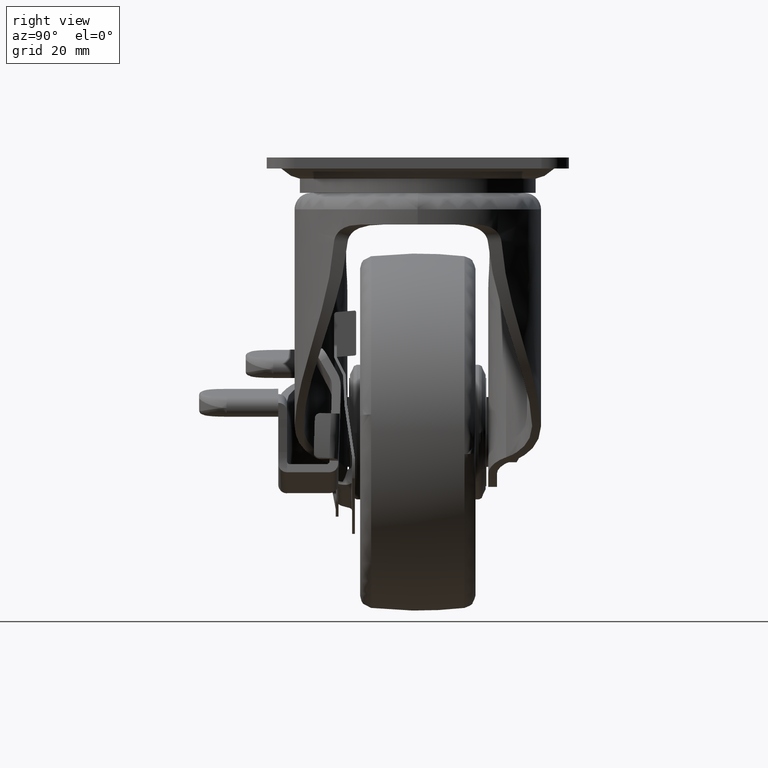
[diagram: clean part render]
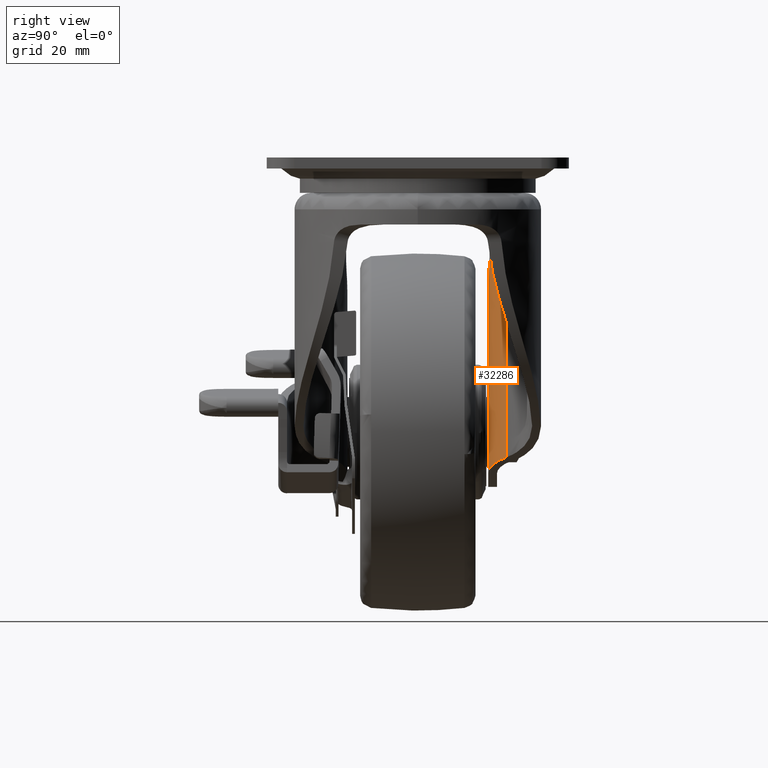
[diagram: same view with one face highlighted and labeled with its STEP entity id]
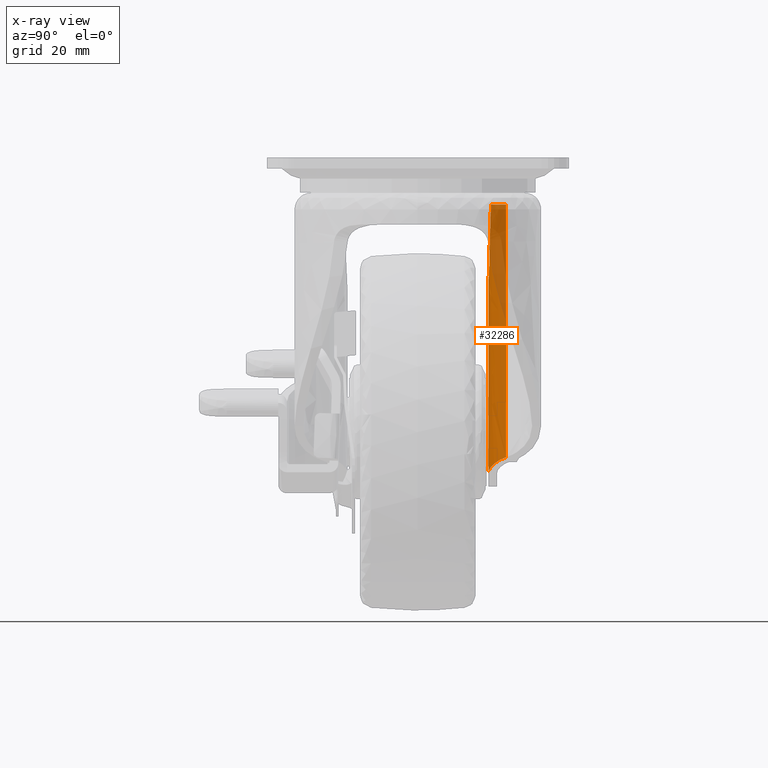
[diagram: x-ray of the same camera — body ghosted, the highlighted face saturated]
A machine part, right view. The second image highlights one B-rep face of the part: STEP entity #32286.
The next image is the same camera in x-ray: the body ghosted, the highlighted face saturated — about 32% of this face is hidden behind the body in this view.
In plain terms, the highlighted face is a freeform B-spline surface patch.
Its self-contained STEP definition (entity closure, byte-faithful):
#30979=CARTESIAN_POINT('',(-30.971173409171350,26.639348241174300,-17.143462153131100));
#30980=VERTEX_POINT('',#30979);
#31155=CARTESIAN_POINT('',(-24.551106778186650,32.171004480450897,-17.198692286226951));
#31156=VERTEX_POINT('',#31155);
#31169=CARTESIAN_POINT('',(-24.551106778186650,32.171004480450897,-17.198692286226951));
#31170=CARTESIAN_POINT('',(-26.821111910185206,28.330591171230029,-17.179164033208107));
#31171=CARTESIAN_POINT('',(-30.971173409171350,26.639348241174321,-17.143462153131232));
#31179=(BOUNDED_CURVE()B_SPLINE_CURVE(2,(#31169,#31170,#31171),.UNSPECIFIED.,.F.,.U.)CURVE()GEOMETRIC_REPRESENTATION_ITEM()QUASI_UNIFORM_CURVE()RATIONAL_B_SPLINE_CURVE((1.0,0.947548087643073,1.0))REPRESENTATION_ITEM(''));
#31180=EDGE_CURVE('',#31156,#30980,#31179,.T.);
#32003=CARTESIAN_POINT('',(-30.556049369187651,26.109934094623402,-34.380707880840554));
#32004=VERTEX_POINT('',#32003);
#32005=CARTESIAN_POINT('',(-30.971173409171289,26.639348241174300,-17.143462153131100));
#32006=CARTESIAN_POINT('',(-30.920320557739402,26.525135809695101,-20.015882535986400));
#32007=CARTESIAN_POINT('',(-30.858088342253708,26.426504407636351,-22.888715320616772));
#32008=CARTESIAN_POINT('',(-30.717953176934891,26.252122809537219,-28.634533617746861));
#32009=CARTESIAN_POINT('',(-30.639968681134430,26.176460764392811,-31.507567129741300));
#32010=CARTESIAN_POINT('',(-30.556049369187551,26.109934094623451,-34.380707880840497));
#32011=B_SPLINE_CURVE_WITH_KNOTS('',3,(#32005,#32006,#32007,#32008,#32009,#32010),.UNSPECIFIED.,.F.,.U.,(4,2,4),(0.0,0.500000000000000,1.0),.UNSPECIFIED.);
#32012=EDGE_CURVE('',#30980,#32004,#32011,.T.);
#32199=CARTESIAN_POINT('',(-12.872656363851791,32.673992637349997,-116.143241623702100));
#32200=CARTESIAN_POINT('',(-24.650034243257920,32.673992637349997,-13.888307063013070));
#32201=CARTESIAN_POINT('',(-16.776211810868112,25.251694795586719,-116.592839951354890));
#32202=CARTESIAN_POINT('',(-28.553589690274240,25.251694795586719,-14.337905390665801));
#32203=CARTESIAN_POINT('',(-25.109130929931094,25.666078180460676,-117.552597421499100));
#32204=CARTESIAN_POINT('',(-36.886508809337215,25.666078180460683,-15.297662860810046));
#32212=(BOUNDED_SURFACE()B_SPLINE_SURFACE(1,2,((#32199,#32201,#32203),(#32200,#32202,#32204)),.UNSPECIFIED.,.F.,.F.,.U.)B_SPLINE_SURFACE_WITH_KNOTS((2,2),(3,3),(0.0,102.930939331792400),(0.0,15.372673930811610),.UNSPECIFIED.)GEOMETRIC_REPRESENTATION_ITEM()RATIONAL_B_SPLINE_SURFACE(((1.0,0.843565671387457,0.999651936499553),(1.0,0.843565671387457,0.999651936499553)))REPRESENTATION_ITEM('')SURFACE());
#32213=CARTESIAN_POINT('',(-13.958340382854940,32.171004480450897,-109.168453778326590));
#32214=VERTEX_POINT('',#32213);
#32215=CARTESIAN_POINT('',(-24.551106778186650,32.171004480450897,-17.198692286226951));
#32216=CARTESIAN_POINT('',(-13.958340382854940,32.171004480450897,-109.168453778326590));
#32217=QUASI_UNIFORM_CURVE('',1,(#32215,#32216),.UNSPECIFIED.,.F.,.U.);
#32218=EDGE_CURVE('',#31156,#32214,#32217,.T.);
#32219=ORIENTED_EDGE('',*,*,#32218,.F.);
#32220=ORIENTED_EDGE('',*,*,#31180,.T.);
#32221=ORIENTED_EDGE('',*,*,#32012,.T.);
#32222=CARTESIAN_POINT('',(-31.237337067700651,25.745815892078902,-44.778439230526402));
#32223=VERTEX_POINT('',#32222);
#32224=CARTESIAN_POINT('',(-31.237337067700651,25.745815892078902,-44.778439230526402));
#32225=CARTESIAN_POINT('',(-30.978908773722861,25.788623989268871,-43.934019730008259));
#32226=CARTESIAN_POINT('',(-30.771909170149218,25.839556409856701,-43.082251767322468));
#32227=CARTESIAN_POINT('',(-30.457270743496050,25.937722614007392,-41.363544853443479));
#32228=CARTESIAN_POINT('',(-30.349645451878470,25.984993828519539,-40.496605740616140));
#32229=CARTESIAN_POINT('',(-30.263507646834700,26.042271943714049,-39.184156322181543));
#32230=CARTESIAN_POINT('',(-30.247378774990359,26.059131562532212,-38.744663233488353));
#32231=CARTESIAN_POINT('',(-30.242471230641080,26.080061038502429,-38.082296095040789));
#32232=CARTESIAN_POINT('',(-30.244064102876870,26.086297472831468,-37.861415432882808));
#32233=CARTESIAN_POINT('',(-30.253634623318860,26.097139845837859,-37.421292536898591));
#32234=CARTESIAN_POINT('',(-30.261609345665661,26.101754693660990,-37.201776120214817));
#32235=CARTESIAN_POINT('',(-30.317245325498590,26.120638870601550,-36.106890203031000));
#32236=CARTESIAN_POINT('',(-30.412034311403900,26.122079258796489,-35.239585776597110));
#32237=CARTESIAN_POINT('',(-30.556049369187701,26.109934094623419,-34.380707880840554));
#32238=B_SPLINE_CURVE_WITH_KNOTS('',3,(#32224,#32225,#32226,#32227,#32228,#32229,#32230,#32231,#32232,#32233,#32234,#32235,#32236,#32237),.UNSPECIFIED.,.F.,.U.,(4,2,2,2,2,2,4),(0.0,0.250000000000002,0.500000000000004,0.625000000000004,0.687500000000003,0.750000000000002,1.0),.UNSPECIFIED.);
#32239=EDGE_CURVE('',#32223,#32004,#32238,.T.);
#32240=ORIENTED_EDGE('',*,*,#32239,.F.);
#32241=CARTESIAN_POINT('',(-32.416170370900097,25.649999999999999,-48.418291229624003));
#32242=VERTEX_POINT('',#32241);
#32243=CARTESIAN_POINT('',(-32.416170370900097,25.649999999999999,-48.418291229624003));
#32244=CARTESIAN_POINT('',(-32.003289571279382,25.650000000000048,-47.210623233784460));
#32245=CARTESIAN_POINT('',(-31.610385084794920,25.684021278736900,-45.997381120087013));
#32246=CARTESIAN_POINT('',(-31.237337067700651,25.745815892078951,-44.778439230526402));
#32247=QUASI_UNIFORM_CURVE('',3,(#32243,#32244,#32245,#32246),.UNSPECIFIED.,.F.,.U.);
#32248=EDGE_CURVE('',#32242,#32223,#32247,.T.);
#32249=ORIENTED_EDGE('',*,*,#32248,.F.);
#32250=CARTESIAN_POINT('',(-24.742344826114799,25.649999999999999,-115.044881371074000));
#32251=VERTEX_POINT('',#32250);
#32252=CARTESIAN_POINT('',(-24.742344826114799,25.649999999999999,-115.044881371074000));
#32253=CARTESIAN_POINT('',(-32.416170370900097,25.649999999999999,-48.418291229624003));
#32254=QUASI_UNIFORM_CURVE('',1,(#32252,#32253),.UNSPECIFIED.,.F.,.U.);
#32255=EDGE_CURVE('',#32251,#32242,#32254,.T.);
#32256=ORIENTED_EDGE('',*,*,#32255,.F.);
#32257=CARTESIAN_POINT('',(-13.958340382854921,32.171004480450847,-109.168453778326590));
#32258=CARTESIAN_POINT('',(-14.239973044269711,31.659610616310260,-109.345089740962610));
#32259=CARTESIAN_POINT('',(-14.548974073648511,31.177405962525050,-109.536945877620100));
#32260=CARTESIAN_POINT('',(-15.218315792652380,30.266539452180719,-109.946697831210300));
#32261=CARTESIAN_POINT('',(-15.578678074256990,29.837904110704390,-110.164612877517200));
#32262=CARTESIAN_POINT('',(-16.157555264442589,29.234021771627852,-110.509047556987500));
#32263=CARTESIAN_POINT('',(-16.356925479584230,29.039262793098779,-110.626797831267890));
#32264=CARTESIAN_POINT('',(-16.665773346095548,28.756994483524810,-110.807680421025000));
#32265=CARTESIAN_POINT('',(-16.770503620290199,28.664433193827939,-110.868769807778700));
#32266=CARTESIAN_POINT('',(-16.981887656315770,28.483789938574830,-110.991546656598300));
#32267=CARTESIAN_POINT('',(-17.088668048915419,28.395583682360542,-111.053308965790710));
#32268=CARTESIAN_POINT('',(-17.627950912562511,27.964932927708670,-111.363883182792190));
#32269=CARTESIAN_POINT('',(-18.076526725119301,27.653482018748178,-111.617944744232300));
#32270=CARTESIAN_POINT('',(-19.007577097994769,27.094190323330800,-112.135203847868300));
#32271=CARTESIAN_POINT('',(-19.490052596676492,26.846356801636379,-112.398407711471290));
#32272=CARTESIAN_POINT('',(-20.240174989927940,26.523101492869309,-112.799161035311100));
#32273=CARTESIAN_POINT('',(-20.495273433014290,26.423283881461899,-112.934071726602000));
#32274=CARTESIAN_POINT('',(-21.008030521626679,26.242465423836371,-113.202379907250700));
#32275=CARTESIAN_POINT('',(-21.266329284853221,26.161140639905941,-113.336126144045390));
#32276=CARTESIAN_POINT('',(-22.046966986600619,25.943942291458601,-113.735998783871910));
#32277=CARTESIAN_POINT('',(-22.575029827013491,25.834731898731491,-114.000751453402400));
#32278=CARTESIAN_POINT('',(-23.646757711610629,25.687768257995842,-114.526048784842900));
#32279=CARTESIAN_POINT('',(-24.190419564457390,25.649999999999999,-114.786594158005300));
#32280=CARTESIAN_POINT('',(-24.742344826114799,25.649999999999999,-115.044881371074000));
#32281=B_SPLINE_CURVE_WITH_KNOTS('',3,(#32257,#32258,#32259,#32260,#32261,#32262,#32263,#32264,#32265,#32266,#32267,#32268,#32269,#32270,#32271,#32272,#32273,#32274,#32275,#32276,#32277,#32278,#32279,#32280),.UNSPECIFIED.,.F.,.U.,(4,2,2,2,2,2,2,2,2,2,2,4),(0.0,0.125000000000002,0.250000000000005,0.312500000000006,0.343750000000006,0.375000000000006,0.500000000000006,0.625000000000006,0.687500000000006,0.750000000000005,0.875000000000003,1.0),.UNSPECIFIED.);
#32282=EDGE_CURVE('',#32214,#32251,#32281,.T.);
#32283=ORIENTED_EDGE('',*,*,#32282,.F.);
#32284=EDGE_LOOP('',(#32219,#32220,#32221,#32240,#32249,#32256,#32283));
#32285=FACE_OUTER_BOUND('',#32284,.T.);
#32286=ADVANCED_FACE('',(#32285),#32212,.T.);